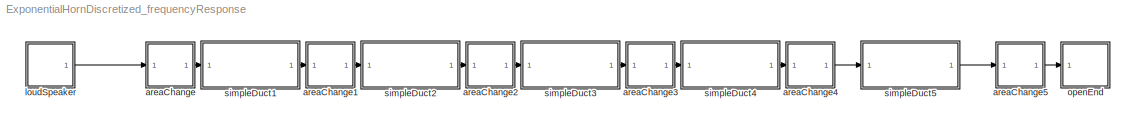
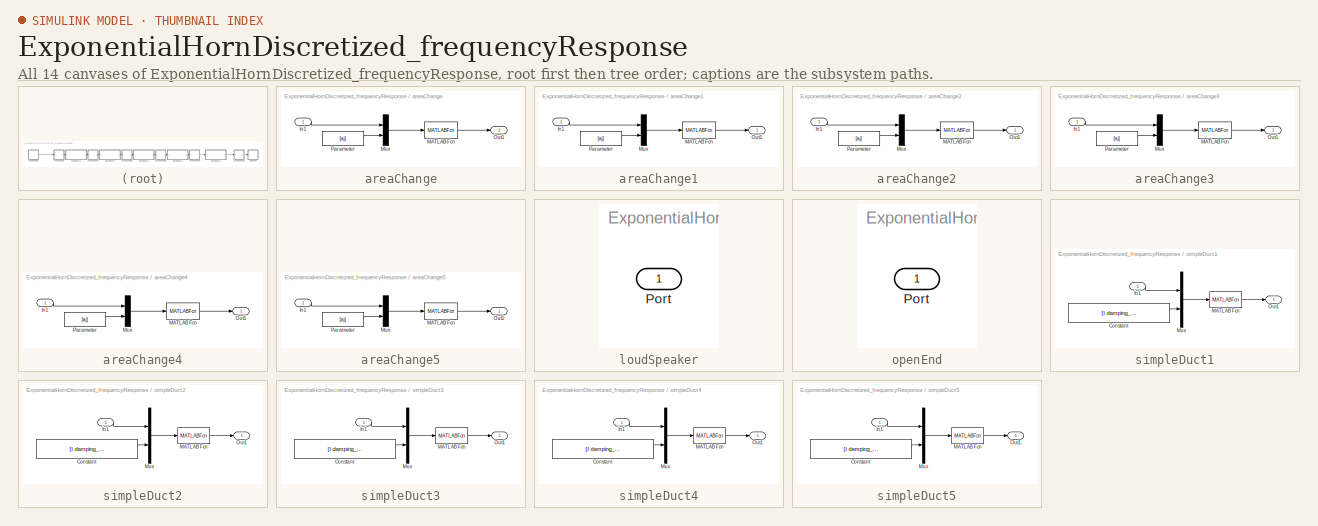
[diagram: thumbnail index - all 14 canvases of the model, root first then tree order]
MODEL ExponentialHornDiscretized_frequencyResponse
KIND model
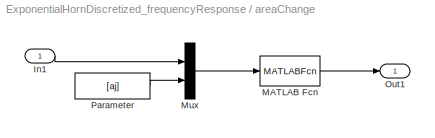
BLOCK [SubSystem] areaChange
  AttributesFormatString = %<aj> m^2
  FunctionWithSeparateData = off
  MaskDisplay = plot([-.5 1.1],[.5 .5])\n\npatch([ .4  .4  .3  .3  .35 .35 .15 .1 .40 .40 .10 .15 .35 .60 .60 .75 .60 .60 .75 .65 .65 .6   .6 ], ...\n      [-.05 .05 .05 .15 .2  .25 .3 .35 .35 .65 .65 .70 .75 .75 .65 .65 .55 .45 .35 .35 .05 .05 -.05], [.85 .85 .85])\nplot([.40 .40 .10 .15 .35 .60 .60 .75 .60 .60], ...\n     [.35 .65 .65 .70 .75 .75 .65 .65 .55 .40])\nplot([.1  .45 .45 .3  .3  .35 .35 .15 .1 ], .....<+301ch>  <repeated x6 — deduplicated; at blocks: areaChange, areaChange1, areaChange2, areaChange3, areaChange4, areaChange5>
  MaskEnableString = on
  MaskHideContents = off
  MaskIconFrame = off
  MaskIconOpaque = on
  MaskIconRotate = port
  MaskIconUnits = normalized
  MaskInitialization = \n
  MaskPortRotate = default
  MaskPromptString = Area @Out1 (m²)
  MaskStyleString = edit
  MaskToolTipString = on
  MaskTunableValueString = on
  MaskValueString = 1.2214
  MaskVariables = aj=@1;
  MaskVisibilityString = on
  MinAlgLoopOccurrences = off
  Opaque = off
  Ports = [1, 1]
  PropExecContextOutsideSubsystem = off
  RTWSystemCode = Auto
  RequestExecContextInheritance = off
  SID = 51
BLOCK [Inport] areaChange/In1
  IconDisplay = Port number
  SID = 52
BLOCK [MATLABFcn] areaChange/MATLAB Fcn
  MATLABFcn = areaChange(u(1),u(2))
  OutputDimensions = 1
  OutputSignalType = real
  Ports = [1, 1]
  SID = 53
BLOCK [Mux] areaChange/Mux
  DisplayOption = bar
  Inputs = 2
  Ports = [2, 1]
  SID = 54
BLOCK [Outport] areaChange/Out1
  IconDisplay = Port number
  SID = 56
BLOCK [Constant] areaChange/Parameter
  SID = 55
  Value = [aj]
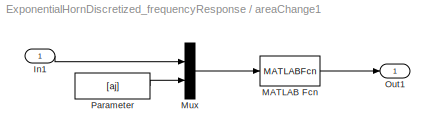
BLOCK [SubSystem] areaChange1
  AttributesFormatString = %<aj> m^2
  FunctionWithSeparateData = off
  MaskEnableString = on
  MaskHideContents = off
  MaskIconFrame = off
  MaskIconOpaque = on
  MaskIconRotate = port
  MaskIconUnits = normalized
  MaskInitialization = \n
  MaskPortRotate = default
  MaskPromptString = Area @Out1 (m²)
  MaskStyleString = edit
  MaskToolTipString = on
  MaskTunableValueString = on
  MaskValueString = 1.8221
  MaskVariables = aj=@1;
  MaskVisibilityString = on
  MinAlgLoopOccurrences = off
  Opaque = off
  Ports = [1, 1]
  PropExecContextOutsideSubsystem = off
  RTWSystemCode = Auto
  RequestExecContextInheritance = off
  SID = 63
BLOCK [Inport] areaChange1/In1
  IconDisplay = Port number
  SID = 64
BLOCK [MATLABFcn] areaChange1/MATLAB Fcn
  MATLABFcn = areaChange(u(1),u(2))
  OutputDimensions = 1
  OutputSignalType = real
  Ports = [1, 1]
  SID = 65
BLOCK [Mux] areaChange1/Mux
  DisplayOption = bar
  Inputs = 2
  Ports = [2, 1]
  SID = 66
BLOCK [Outport] areaChange1/Out1
  IconDisplay = Port number
  SID = 68
BLOCK [Constant] areaChange1/Parameter
  SID = 67
  Value = [aj]
BLOCK [SubSystem] areaChange2
  AttributesFormatString = %<aj> m^2
  FunctionWithSeparateData = off
  MaskEnableString = on
  MaskHideContents = off
  MaskIconFrame = off
  MaskIconOpaque = on
  MaskIconRotate = port
  MaskIconUnits = normalized
  MaskInitialization = \n
  MaskPortRotate = default
  MaskPromptString = Area @Out1 (m²)
  MaskStyleString = edit
  MaskToolTipString = on
  MaskTunableValueString = on
  MaskValueString = 2.7183
  MaskVariables = aj=@1;
  MaskVisibilityString = on
  MinAlgLoopOccurrences = off
  Opaque = off
  Ports = [1, 1]
  PropExecContextOutsideSubsystem = off
  RTWSystemCode = Auto
  RequestExecContextInheritance = off
  SID = 75
BLOCK [Inport] areaChange2/In1
  IconDisplay = Port number
  SID = 76
BLOCK [MATLABFcn] areaChange2/MATLAB Fcn
  MATLABFcn = areaChange(u(1),u(2))
  OutputDimensions = 1
  OutputSignalType = real
  Ports = [1, 1]
  SID = 77
BLOCK [Mux] areaChange2/Mux
  DisplayOption = bar
  Inputs = 2
  Ports = [2, 1]
  SID = 78
BLOCK [Outport] areaChange2/Out1
  IconDisplay = Port number
  SID = 80
BLOCK [Constant] areaChange2/Parameter
  SID = 79
  Value = [aj]
BLOCK [SubSystem] areaChange3
  AttributesFormatString = %<aj> m^2
  FunctionWithSeparateData = off
  MaskEnableString = on
  MaskHideContents = off
  MaskIconFrame = off
  MaskIconOpaque = on
  MaskIconRotate = port
  MaskIconUnits = normalized
  MaskInitialization = \n
  MaskPortRotate = default
  MaskPromptString = Area @Out1 (m²)
  MaskStyleString = edit
  MaskToolTipString = on
  MaskTunableValueString = on
  MaskValueString = 4.0552
  MaskVariables = aj=@1;
  MaskVisibilityString = on
  MinAlgLoopOccurrences = off
  Opaque = off
  Ports = [1, 1]
  PropExecContextOutsideSubsystem = off
  RTWSystemCode = Auto
  RequestExecContextInheritance = off
  SID = 81
BLOCK [Inport] areaChange3/In1
  IconDisplay = Port number
  SID = 82
BLOCK [MATLABFcn] areaChange3/MATLAB Fcn
  MATLABFcn = areaChange(u(1),u(2))
  OutputDimensions = 1
  OutputSignalType = real
  Ports = [1, 1]
  SID = 83
BLOCK [Mux] areaChange3/Mux
  DisplayOption = bar
  Inputs = 2
  Ports = [2, 1]
  SID = 84
BLOCK [Outport] areaChange3/Out1
  IconDisplay = Port number
  SID = 86
BLOCK [Constant] areaChange3/Parameter
  SID = 85
  Value = [aj]
BLOCK [SubSystem] areaChange4
  AttributesFormatString = %<aj> m^2
  FunctionWithSeparateData = off
  MaskEnableString = on
  MaskHideContents = off
  MaskIconFrame = off
  MaskIconOpaque = on
  MaskIconRotate = port
  MaskIconUnits = normalized
  MaskInitialization = \n
  MaskPortRotate = default
  MaskPromptString = Area @Out1 (m²)
  MaskStyleString = edit
  MaskToolTipString = on
  MaskTunableValueString = on
  MaskValueString = 6.0496
  MaskVariables = aj=@1;
  MaskVisibilityString = on
  MinAlgLoopOccurrences = off
  Opaque = off
  Ports = [1, 1]
  PropExecContextOutsideSubsystem = off
  RTWSystemCode = Auto
  RequestExecContextInheritance = off
  SID = 87
BLOCK [Inport] areaChange4/In1
  IconDisplay = Port number
  SID = 88
BLOCK [MATLABFcn] areaChange4/MATLAB Fcn
  MATLABFcn = areaChange(u(1),u(2))
  OutputDimensions = 1
  OutputSignalType = real
  Ports = [1, 1]
  SID = 89
BLOCK [Mux] areaChange4/Mux
  DisplayOption = bar
  Inputs = 2
  Ports = [2, 1]
  SID = 90
BLOCK [Outport] areaChange4/Out1
  IconDisplay = Port number
  SID = 92
BLOCK [Constant] areaChange4/Parameter
  SID = 91
  Value = [aj]
BLOCK [SubSystem] areaChange5
  AttributesFormatString = %<aj> m^2
  FunctionWithSeparateData = off
  MaskEnableString = on
  MaskHideContents = off
  MaskIconFrame = off
  MaskIconOpaque = on
  MaskIconRotate = port
  MaskIconUnits = normalized
  MaskInitialization = \n
  MaskPortRotate = default
  MaskPromptString = Area @Out1 (m²)
  MaskStyleString = edit
  MaskToolTipString = on
  MaskTunableValueString = on
  MaskValueString = 7.3891
  MaskVariables = aj=@1;
  MaskVisibilityString = on
  MinAlgLoopOccurrences = off
  Opaque = off
  Ports = [1, 1]
  PropExecContextOutsideSubsystem = off
  RTWSystemCode = Auto
  RequestExecContextInheritance = off
  SID = 117
BLOCK [Inport] areaChange5/In1
  IconDisplay = Port number
  SID = 118
BLOCK [MATLABFcn] areaChange5/MATLAB Fcn
  MATLABFcn = areaChange(u(1),u(2))
  OutputDimensions = 1
  OutputSignalType = real
  Ports = [1, 1]
  SID = 119
BLOCK [Mux] areaChange5/Mux
  DisplayOption = bar
  Inputs = 2
  Ports = [2, 1]
  SID = 120
BLOCK [Outport] areaChange5/Out1
  IconDisplay = Port number
  SID = 122
BLOCK [Constant] areaChange5/Parameter
  SID = 121
  Value = [aj]
BLOCK [SubSystem] loudSpeaker
  FunctionWithSeparateData = off
  MaskCallbackString = ||||||
  MaskDisplay = plot([.2 .2 .4 .4 .2],[.6 .4 .4 .6 .6])\nplot([.7 .7 .4 .4 .7],[.9 .1 .3 .7 .9])
  MaskEnableString = on,on,on,on,on,on,on
  MaskHideContents = off
  MaskIconFrame = off
  MaskIconOpaque = on
  MaskIconRotate = port
  MaskIconUnits = normalized
  MaskInitialization = if Mach<0\n   errordlg('Mach Number must be bigger than or equal to zero','invalid Mach Number');\nend\n\n\nif c<=0\n    errordlg('speed of sound must be positive','invalid speed of sound');\nend\n\n\nif D<=0\n     errordlg('diameter must be positive','invalid diameter');\n\nend\n\n\nif rho<=0\n     errordlg('density must be positive','invalid density');\nend\n\n% Set identifier\nset_param(gcb,'el...<+64ch>
  MaskPortRotate = default
  MaskPromptString = Location|Foringamplitude [m/s]|Speed of sound (m/s)|Mach number (dimensionless)|Density (Kg/m³)|Diameter (m)|element
  MaskSelfModifiable = on
  MaskStyleString = popup(Downstream|Upstream),edit,edit,edit,edit,edit,edit
  MaskToolTipString = on,on,on,on,on,on,on
  MaskTunableValueString = off,on,on,on,on,on,off
  MaskValueString = Upstream|1|100|0|1.2|2*sqrt(1/pi)|loudSpeaker
  MaskVariables = loc=&1;Amp=@2;c=@3;Mach=@4;rho=@5;D=@6;element=&7;
  MaskVisibilityString = on,on,on,on,on,on,off
  MinAlgLoopOccurrences = off
  Opaque = off
  Ports = [0, 1]
  PropExecContextOutsideSubsystem = off
  RTWSystemCode = Auto
  RequestExecContextInheritance = off
  SID = 43
BLOCK [Outport] loudSpeaker/Port
  IconDisplay = Port number
  SID = 43:64
BLOCK [SubSystem] openEnd
  FunctionWithSeparateData = off
  MaskCallbackString = |||||
  MaskDisplay = patch([.2  1  1 .2],[.2 .2 .8 .8],[.7 1 1])\npatch([.2 .3 .3 .2],[.2 .2 .8 .8],[.9 1 1])\npatch([.3 .4 .4 .3],[.2 .2 .8 .8],[.8 1 1])\nplot([.3 1],[.2 .2])\nplot([.3 1],[.8 .8])\nplot([1 1 0 0 1],[1 0 0 1 1])
  MaskEnableString = on,on,on,on,on,on
  MaskHideContents = off
  MaskIconFrame = off
  MaskIconOpaque = on
  MaskIconRotate = port
  MaskIconUnits = normalized
  MaskInitialization = if Mach<0\n   errordlg('Mach Number must be bigger than or equal to zero','invalid Mach Number');\nend\n\n\nif c<=0\n    errordlg('speed of sound must be positive','invalid speed of sound');\nend\n\n\nif D<=0\n     errordlg('diameter must be positive','invalid diameter');\n\nend\n\n\nif rho<=0\n     errordlg('density must be positive','invalid density');\nend\n\n% Set identifier\nset_param(gcb,'el...<+60ch>
  MaskPortRotate = default
  MaskPromptString = Location|Speed of sound (m/s)|Mach number (dimensionless)|Density (Kg/m³)|Diameter (m)|element
  MaskSelfModifiable = on
  MaskStyleString = popup(Downstream|Upstream),edit,edit,edit,edit,edit
  MaskToolTipString = on,on,on,on,on,on
  MaskTunableValueString = off,on,on,on,on,off
  MaskValueString = Downstream|343|0.1|1.2|1|openEnd
  MaskVariables = loc=&1;c=@2;Mach=@3;rho=@4;D=@5;element=&6;
  MaskVisibilityString = on,on,on,on,on,off
  MinAlgLoopOccurrences = off
  Opaque = off
  Ports = [1]
  PropExecContextOutsideSubsystem = off
  RTWSystemCode = Auto
  RequestExecContextInheritance = off
  SID = 44
BLOCK [Inport] openEnd/Port
  IconDisplay = Port number
  SID = 44:65
BLOCK [SubSystem] simpleDuct1
  AttributesFormatString = %<l> m
  FunctionWithSeparateData = off
  MaskCallbackString = |% Get the mask parameter values. This is a cell\n%   array of strings.\nmaskStr = get_param(gcb,'MaskValues');\n\n% The pop-up menu is the first mask parameter.\n%   Check pop-up choice by comparing first letter, i.e. n or K...\nif strcmp(maskStr{2}(1),'n'),\n    % Turn off visibility of gamma/nu/Pr\n    set_param(gcb,'MaskVisibilities',{'on';'on';'off';'off';'off';'off'}),\n	maskStr{6} = '1';\n ...<+849ch>  <repeated x5 — deduplicated; at blocks: simpleDuct1, simpleDuct2, simpleDuct3, simpleDuct4, simpleDuct5>
  MaskDisplay = patch([0 1 1 0],[.2 .2 .8 .8],[.7 1 1])\nplot([0 1],[.2 .2])\nplot([0 1],[.8 .8])\n\nplot([1 1 0 0 1],[1 0 0 1 1])
  MaskEnableString = on,on,on,on,on,on
  MaskHideContents = off
  MaskIconFrame = off
  MaskIconOpaque = on
  MaskIconRotate = port
  MaskIconUnits = normalized
  MaskPortRotate = default
  MaskPromptString = Length [m]|Damping model|Ratio of specific heats [-]|Kinematic Viscosity [m^2/s]|Prandtl number [-]|damping
  MaskStyleString = edit,popup(no damping|Kirchhoff (wide tubes)|Peters|Dokumanci (best but slow)|Howe (turbulent)),edit,edit,edit,edit
  MaskToolTipString = on,on,on,on,on,on
  MaskTunableValueString = on,on,on,on,on,on
  MaskValueString = 0.2|no damping|1.4|1.568e-5|0.707|1
  MaskVariables = l=@1;damping_model_popup=@2;gm=@3;nu=@4;Pr=@5;damping_model_id=@6;
  MaskVisibilityString = on,on,off,off,off,off
  MinAlgLoopOccurrences = off
  Opaque = off
  Ports = [1, 1]
  PropExecContextOutsideSubsystem = off
  RTWSystemCode = Auto
  RequestExecContextInheritance = off
  SID = 57
BLOCK [Constant] simpleDuct1/Constant
  SID = 59
  Value = [l damping_model_id gm nu Pr]
BLOCK [Inport] simpleDuct1/In1
  IconDisplay = Port number
  SID = 58
BLOCK [MATLABFcn] simpleDuct1/MATLAB Fcn
  MATLABFcn = simpleDuct(u(1),u(2),u(3),u(4),u(5),u(6))
  Ports = [1, 1]
  SID = 60
BLOCK [Mux] simpleDuct1/Mux
  DisplayOption = bar
  Inputs = 2
  Ports = [2, 1]
  SID = 61
BLOCK [Outport] simpleDuct1/Out1
  IconDisplay = Port number
  SID = 62
BLOCK [SubSystem] simpleDuct2
  AttributesFormatString = %<l> m
  FunctionWithSeparateData = off
  MaskDisplay = patch([0 1 1 0],[.2 .2 .8 .8],[.7 1 1])\nplot([0 1],[.2 .2])\nplot([0 1],[.8 .8])\n\nplot([1 1 0 0 1],[1 0 0 1 1])
  MaskEnableString = on,on,on,on,on,on
  MaskHideContents = off
  MaskIconFrame = off
  MaskIconOpaque = on
  MaskIconRotate = port
  MaskIconUnits = normalized
  MaskPortRotate = default
  MaskPromptString = Length [m]|Damping model|Ratio of specific heats [-]|Kinematic Viscosity [m^2/s]|Prandtl number [-]|damping
  MaskStyleString = edit,popup(no damping|Kirchhoff (wide tubes)|Peters|Dokumanci (best but slow)|Howe (turbulent)),edit,edit,edit,edit
  MaskToolTipString = on,on,on,on,on,on
  MaskTunableValueString = on,on,on,on,on,on
  MaskValueString = 0.2|no damping|1.4|1.568e-5|0.707|1
  MaskVariables = l=@1;damping_model_popup=@2;gm=@3;nu=@4;Pr=@5;damping_model_id=@6;
  MaskVisibilityString = on,on,off,off,off,off
  MinAlgLoopOccurrences = off
  Opaque = off
  Ports = [1, 1]
  PropExecContextOutsideSubsystem = off
  RTWSystemCode = Auto
  RequestExecContextInheritance = off
  SID = 69
BLOCK [Constant] simpleDuct2/Constant
  SID = 71
  Value = [l damping_model_id gm nu Pr]
BLOCK [Inport] simpleDuct2/In1
  IconDisplay = Port number
  SID = 70
BLOCK [MATLABFcn] simpleDuct2/MATLAB Fcn
  MATLABFcn = simpleDuct(u(1),u(2),u(3),u(4),u(5),u(6))
  Ports = [1, 1]
  SID = 72
BLOCK [Mux] simpleDuct2/Mux
  DisplayOption = bar
  Inputs = 2
  Ports = [2, 1]
  SID = 73
BLOCK [Outport] simpleDuct2/Out1
  IconDisplay = Port number
  SID = 74
BLOCK [SubSystem] simpleDuct3
  AttributesFormatString = %<l> m
  FunctionWithSeparateData = off
  MaskDisplay = patch([0 1 1 0],[.2 .2 .8 .8],[.7 1 1])\nplot([0 1],[.2 .2])\nplot([0 1],[.8 .8])\n\nplot([1 1 0 0 1],[1 0 0 1 1])
  MaskEnableString = on,on,on,on,on,on
  MaskHideContents = off
  MaskIconFrame = off
  MaskIconOpaque = on
  MaskIconRotate = port
  MaskIconUnits = normalized
  MaskPortRotate = default
  MaskPromptString = Length [m]|Damping model|Ratio of specific heats [-]|Kinematic Viscosity [m^2/s]|Prandtl number [-]|damping
  MaskStyleString = edit,popup(no damping|Kirchhoff (wide tubes)|Peters|Dokumanci (best but slow)|Howe (turbulent)),edit,edit,edit,edit
  MaskToolTipString = on,on,on,on,on,on
  MaskTunableValueString = on,on,on,on,on,on
  MaskValueString = 0.2|no damping|1.4|1.568e-5|0.707|1
  MaskVariables = l=@1;damping_model_popup=@2;gm=@3;nu=@4;Pr=@5;damping_model_id=@6;
  MaskVisibilityString = on,on,off,off,off,off
  MinAlgLoopOccurrences = off
  Opaque = off
  Ports = [1, 1]
  PropExecContextOutsideSubsystem = off
  RTWSystemCode = Auto
  RequestExecContextInheritance = off
  SID = 93
BLOCK [Constant] simpleDuct3/Constant
  SID = 95
  Value = [l damping_model_id gm nu Pr]
BLOCK [Inport] simpleDuct3/In1
  IconDisplay = Port number
  SID = 94
BLOCK [MATLABFcn] simpleDuct3/MATLAB Fcn
  MATLABFcn = simpleDuct(u(1),u(2),u(3),u(4),u(5),u(6))
  Ports = [1, 1]
  SID = 96
BLOCK [Mux] simpleDuct3/Mux
  DisplayOption = bar
  Inputs = 2
  Ports = [2, 1]
  SID = 97
BLOCK [Outport] simpleDuct3/Out1
  IconDisplay = Port number
  SID = 98
BLOCK [SubSystem] simpleDuct4
  AttributesFormatString = %<l> m
  FunctionWithSeparateData = off
  MaskDisplay = patch([0 1 1 0],[.2 .2 .8 .8],[.7 1 1])\nplot([0 1],[.2 .2])\nplot([0 1],[.8 .8])\n\nplot([1 1 0 0 1],[1 0 0 1 1])
  MaskEnableString = on,on,on,on,on,on
  MaskHideContents = off
  MaskIconFrame = off
  MaskIconOpaque = on
  MaskIconRotate = port
  MaskIconUnits = normalized
  MaskPortRotate = default
  MaskPromptString = Length [m]|Damping model|Ratio of specific heats [-]|Kinematic Viscosity [m^2/s]|Prandtl number [-]|damping
  MaskStyleString = edit,popup(no damping|Kirchhoff (wide tubes)|Peters|Dokumanci (best but slow)|Howe (turbulent)),edit,edit,edit,edit
  MaskToolTipString = on,on,on,on,on,on
  MaskTunableValueString = on,on,on,on,on,on
  MaskValueString = 0.2|no damping|1.4|1.568e-5|0.707|1
  MaskVariables = l=@1;damping_model_popup=@2;gm=@3;nu=@4;Pr=@5;damping_model_id=@6;
  MaskVisibilityString = on,on,off,off,off,off
  MinAlgLoopOccurrences = off
  Opaque = off
  Ports = [1, 1]
  PropExecContextOutsideSubsystem = off
  RTWSystemCode = Auto
  RequestExecContextInheritance = off
  SID = 99
BLOCK [Constant] simpleDuct4/Constant
  SID = 101
  Value = [l damping_model_id gm nu Pr]
BLOCK [Inport] simpleDuct4/In1
  IconDisplay = Port number
  SID = 100
BLOCK [MATLABFcn] simpleDuct4/MATLAB Fcn
  MATLABFcn = simpleDuct(u(1),u(2),u(3),u(4),u(5),u(6))
  Ports = [1, 1]
  SID = 102
BLOCK [Mux] simpleDuct4/Mux
  DisplayOption = bar
  Inputs = 2
  Ports = [2, 1]
  SID = 103
BLOCK [Outport] simpleDuct4/Out1
  IconDisplay = Port number
  SID = 104
BLOCK [SubSystem] simpleDuct5
  AttributesFormatString = %<l> m
  FunctionWithSeparateData = off
  MaskDisplay = patch([0 1 1 0],[.2 .2 .8 .8],[.7 1 1])\nplot([0 1],[.2 .2])\nplot([0 1],[.8 .8])\n\nplot([1 1 0 0 1],[1 0 0 1 1])
  MaskEnableString = on,on,on,on,on,on
  MaskHideContents = off
  MaskIconFrame = off
  MaskIconOpaque = on
  MaskIconRotate = port
  MaskIconUnits = normalized
  MaskPortRotate = default
  MaskPromptString = Length [m]|Damping model|Ratio of specific heats [-]|Kinematic Viscosity [m^2/s]|Prandtl number [-]|damping
  MaskStyleString = edit,popup(no damping|Kirchhoff (wide tubes)|Peters|Dokumanci (best but slow)|Howe (turbulent)),edit,edit,edit,edit
  MaskToolTipString = on,on,on,on,on,on
  MaskTunableValueString = on,on,on,on,on,on
  MaskValueString = 0.2|no damping|1.4|1.568e-5|0.707|1
  MaskVariables = l=@1;damping_model_popup=@2;gm=@3;nu=@4;Pr=@5;damping_model_id=@6;
  MaskVisibilityString = on,on,off,off,off,off
  MinAlgLoopOccurrences = off
  Opaque = off
  Ports = [1, 1]
  PropExecContextOutsideSubsystem = off
  RTWSystemCode = Auto
  RequestExecContextInheritance = off
  SID = 111
BLOCK [Constant] simpleDuct5/Constant
  SID = 113
  Value = [l damping_model_id gm nu Pr]
BLOCK [Inport] simpleDuct5/In1
  IconDisplay = Port number
  SID = 112
BLOCK [MATLABFcn] simpleDuct5/MATLAB Fcn
  MATLABFcn = simpleDuct(u(1),u(2),u(3),u(4),u(5),u(6))
  Ports = [1, 1]
  SID = 114
BLOCK [Mux] simpleDuct5/Mux
  DisplayOption = bar
  Inputs = 2
  Ports = [2, 1]
  SID = 115
BLOCK [Outport] simpleDuct5/Out1
  IconDisplay = Port number
  SID = 116
LINE areaChange/In1:1 -> areaChange/Mux:1
LINE areaChange/MATLAB Fcn:1 -> areaChange/Out1:1
LINE areaChange/Mux:1 -> areaChange/MATLAB Fcn:1
LINE areaChange/Parameter:1 -> areaChange/Mux:2
LINE areaChange1/In1:1 -> areaChange1/Mux:1
LINE areaChange1/MATLAB Fcn:1 -> areaChange1/Out1:1
LINE areaChange1/Mux:1 -> areaChange1/MATLAB Fcn:1
LINE areaChange1/Parameter:1 -> areaChange1/Mux:2
LINE areaChange1:1 -> simpleDuct2:1
LINE areaChange2/In1:1 -> areaChange2/Mux:1
LINE areaChange2/MATLAB Fcn:1 -> areaChange2/Out1:1
LINE areaChange2/Mux:1 -> areaChange2/MATLAB Fcn:1
LINE areaChange2/Parameter:1 -> areaChange2/Mux:2
LINE areaChange2:1 -> simpleDuct3:1
LINE areaChange3/In1:1 -> areaChange3/Mux:1
LINE areaChange3/MATLAB Fcn:1 -> areaChange3/Out1:1
LINE areaChange3/Mux:1 -> areaChange3/MATLAB Fcn:1
LINE areaChange3/Parameter:1 -> areaChange3/Mux:2
LINE areaChange3:1 -> simpleDuct4:1
LINE areaChange4/In1:1 -> areaChange4/Mux:1
LINE areaChange4/MATLAB Fcn:1 -> areaChange4/Out1:1
LINE areaChange4/Mux:1 -> areaChange4/MATLAB Fcn:1
LINE areaChange4/Parameter:1 -> areaChange4/Mux:2
LINE areaChange4:1 -> simpleDuct5:1
LINE areaChange5/In1:1 -> areaChange5/Mux:1
LINE areaChange5/MATLAB Fcn:1 -> areaChange5/Out1:1
LINE areaChange5/Mux:1 -> areaChange5/MATLAB Fcn:1
LINE areaChange5/Parameter:1 -> areaChange5/Mux:2
LINE areaChange5:1 -> openEnd:1
LINE areaChange:1 -> simpleDuct1:1
LINE loudSpeaker:1 -> areaChange:1
LINE simpleDuct1/Constant:1 -> simpleDuct1/Mux:2
LINE simpleDuct1/In1:1 -> simpleDuct1/Mux:1
LINE simpleDuct1/MATLAB Fcn:1 -> simpleDuct1/Out1:1
LINE simpleDuct1/Mux:1 -> simpleDuct1/MATLAB Fcn:1
LINE simpleDuct1:1 -> areaChange1:1
LINE simpleDuct2/Constant:1 -> simpleDuct2/Mux:2
LINE simpleDuct2/In1:1 -> simpleDuct2/Mux:1
LINE simpleDuct2/MATLAB Fcn:1 -> simpleDuct2/Out1:1
LINE simpleDuct2/Mux:1 -> simpleDuct2/MATLAB Fcn:1
LINE simpleDuct2:1 -> areaChange2:1
LINE simpleDuct3/Constant:1 -> simpleDuct3/Mux:2
LINE simpleDuct3/In1:1 -> simpleDuct3/Mux:1
LINE simpleDuct3/MATLAB Fcn:1 -> simpleDuct3/Out1:1
LINE simpleDuct3/Mux:1 -> simpleDuct3/MATLAB Fcn:1
LINE simpleDuct3:1 -> areaChange3:1
LINE simpleDuct4/Constant:1 -> simpleDuct4/Mux:2
LINE simpleDuct4/In1:1 -> simpleDuct4/Mux:1
LINE simpleDuct4/MATLAB Fcn:1 -> simpleDuct4/Out1:1
LINE simpleDuct4/Mux:1 -> simpleDuct4/MATLAB Fcn:1
LINE simpleDuct4:1 -> areaChange4:1
LINE simpleDuct5/Constant:1 -> simpleDuct5/Mux:2
LINE simpleDuct5/In1:1 -> simpleDuct5/Mux:1
LINE simpleDuct5/MATLAB Fcn:1 -> simpleDuct5/Out1:1
LINE simpleDuct5/Mux:1 -> simpleDuct5/MATLAB Fcn:1
LINE simpleDuct5:1 -> areaChange5:1
